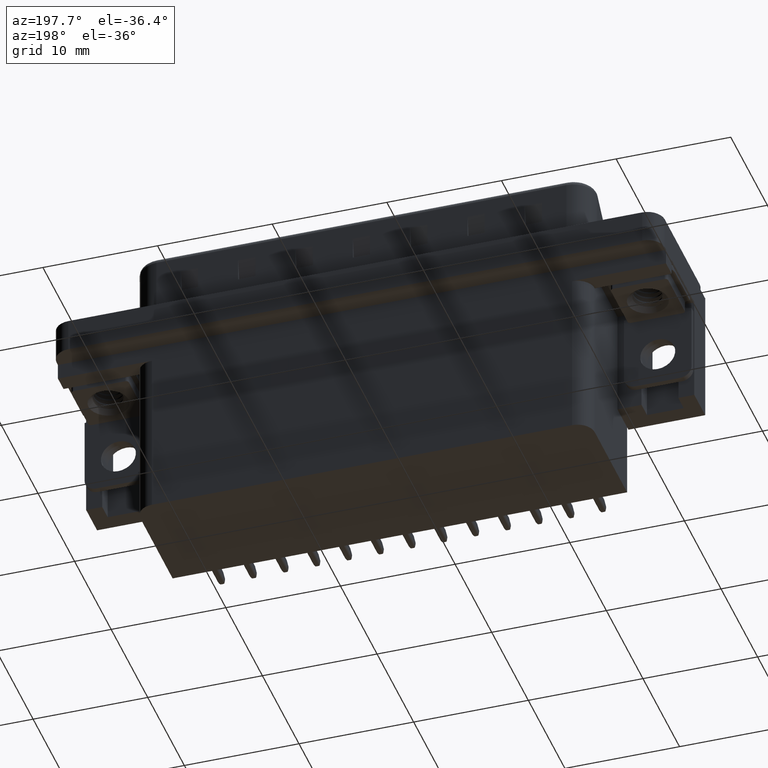
[diagram: clean part render]
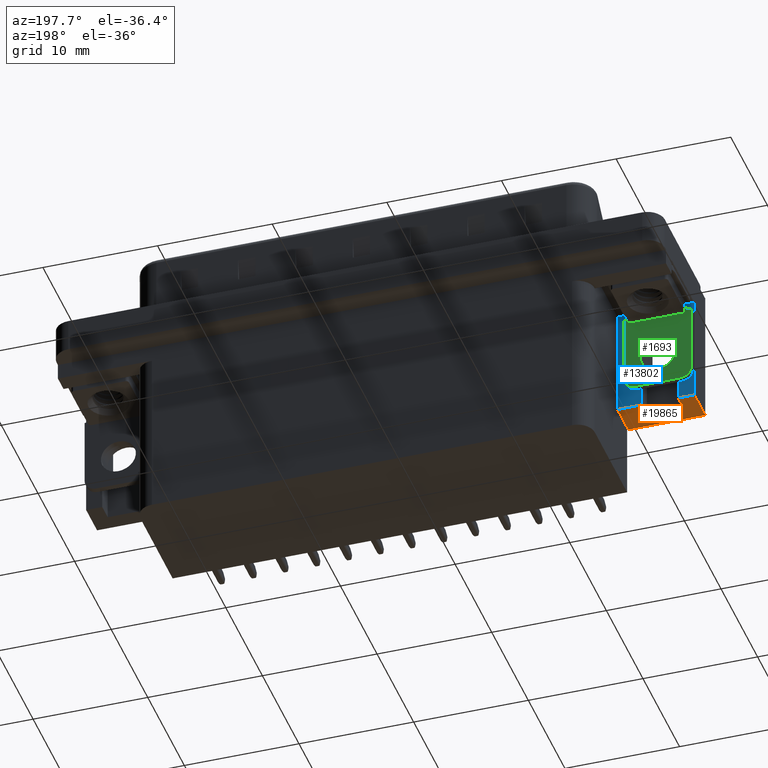
[diagram: same view with three faces highlighted in distinct colors, each labeled with its STEP entity id]
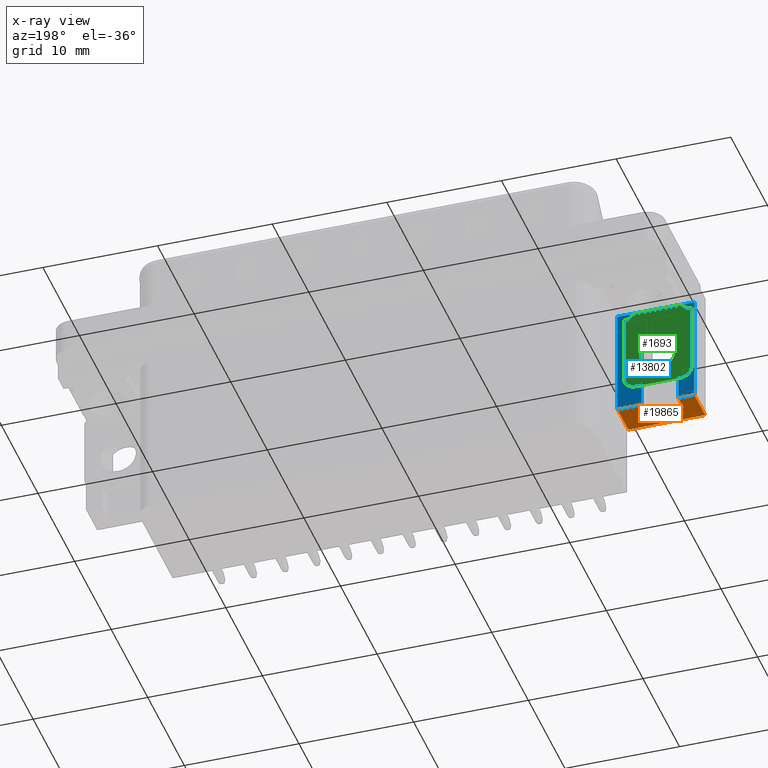
[diagram: x-ray of the same camera — body ghosted, the three highlighted faces saturated]
A machine part, auxiliary view with three faces highlighted in distinct colors.
The next image is the same camera in x-ray (body ghosted, the three faces saturated) — at least one of them is partly hidden behind the body in this view.
Their STEP definitions:

[orange] entity #19865 — the highlighted planar face has unit normal (0, 0, 1).
#186 = VERTEX_POINT ( 'NONE', #2868 ) ;
#203 = DIRECTION ( 'NONE',  ( 6.472848790958235800E-017, 1.000000000000000000, -0.0000000000000000000 ) ) ;
#514 = ORIENTED_EDGE ( 'NONE', *, *, #4296, .F. ) ;
#773 = VECTOR ( 'NONE', #16507, 1000.000000000000000 ) ;
#1485 = EDGE_CURVE ( 'NONE', #17939, #17450, #2166, .T. ) ;
#1992 = DIRECTION ( 'NONE',  ( 6.472848790958235800E-017, 1.000000000000000000, -0.0000000000000000000 ) ) ;
#2073 = CARTESIAN_POINT ( 'NONE',  ( 3.699999999999995700, -6.294999999999999900, -12.05000000000000100 ) ) ;
#2152 = LINE ( 'NONE', #2073, #5705 ) ;
#2166 = LINE ( 'NONE', #2346, #20013 ) ;
#2346 = CARTESIAN_POINT ( 'NONE',  ( -3.000000000000003100, -6.294999999999999900, -12.05000000000000100 ) ) ;
#2655 = EDGE_CURVE ( 'NONE', #5080, #17939, #7852, .T. ) ;
#2868 = CARTESIAN_POINT ( 'NONE',  ( 1.600000000000000300, -3.295000000000000800, -12.05000000000000100 ) ) ;
#2907 = VERTEX_POINT ( 'NONE', #19874 ) ;
#2919 = LINE ( 'NONE', #15902, #6520 ) ;
#3104 = ORIENTED_EDGE ( 'NONE', *, *, #5259, .T. ) ;
#3389 = LINE ( 'NONE', #15766, #12167 ) ;
#3460 = DIRECTION ( 'NONE',  ( 0.0000000000000000000, 1.000000000000000000, -0.0000000000000000000 ) ) ;
#3752 = CARTESIAN_POINT ( 'NONE',  ( 3.699999999999995700, -3.295000000000000800, -12.05000000000000100 ) ) ;
#4027 = CARTESIAN_POINT ( 'NONE',  ( 1.600000000000000300, -4.774999999999999500, -12.05000000000000100 ) ) ;
#4296 = EDGE_CURVE ( 'NONE', #2907, #7349, #2919, .T. ) ;
#4600 = EDGE_CURVE ( 'NONE', #186, #13013, #19218, .T. ) ;
#4791 = EDGE_CURVE ( 'NONE', #14261, #9424, #2152, .T. ) ;
#5080 = VERTEX_POINT ( 'NONE', #20862 ) ;
#5095 = ORIENTED_EDGE ( 'NONE', *, *, #1485, .T. ) ;
#5118 = EDGE_CURVE ( 'NONE', #186, #9424, #17096, .T. ) ;
#5259 = EDGE_CURVE ( 'NONE', #17450, #7349, #18386, .T. ) ;
#5337 = ORIENTED_EDGE ( 'NONE', *, *, #6573, .F. ) ;
#5617 = DIRECTION ( 'NONE',  ( -1.000000000000000000, 0.0000000000000000000, 0.0000000000000000000 ) ) ;
#5705 = VECTOR ( 'NONE', #1992, 1000.000000000000000 ) ;
#6101 = DIRECTION ( 'NONE',  ( 6.472848790958235800E-017, 1.000000000000000000, -0.0000000000000000000 ) ) ;
#6520 = VECTOR ( 'NONE', #3460, 1000.000000000000000 ) ;
#6573 = EDGE_CURVE ( 'NONE', #5080, #14261, #3389, .T. ) ;
#6696 = CARTESIAN_POINT ( 'NONE',  ( 1.600000000000000800, -4.795000000000000800, -12.05000000000000100 ) ) ;
#6793 = DIRECTION ( 'NONE',  ( 1.000000000000000000, -6.472848790958235800E-017, 0.0000000000000000000 ) ) ;
#6820 = CARTESIAN_POINT ( 'NONE',  ( -3.000000000000003100, -3.295000000000000400, -12.05000000000000100 ) ) ;
#7133 = EDGE_CURVE ( 'NONE', #2907, #13013, #22024, .T. ) ;
#7349 = VERTEX_POINT ( 'NONE', #10987 ) ;
#7852 = LINE ( 'NONE', #13654, #16546 ) ;
#7927 = CARTESIAN_POINT ( 'NONE',  ( -3.000000000000003100, -6.275000000000000400, -12.05000000000000100 ) ) ;
#8334 = VECTOR ( 'NONE', #10407, 1000.000000000000000 ) ;
#8853 = ORIENTED_EDGE ( 'NONE', *, *, #5118, .T. ) ;
#8945 = CARTESIAN_POINT ( 'NONE',  ( -3.000000000000003100, -6.294999999999999900, -12.05000000000000100 ) ) ;
#9424 = VERTEX_POINT ( 'NONE', #3752 ) ;
#10407 = DIRECTION ( 'NONE',  ( 1.000000000000000000, 0.0000000000000000000, 0.0000000000000000000 ) ) ;
#10735 = DIRECTION ( 'NONE',  ( 1.000000000000000000, 0.0000000000000000000, -0.0000000000000000000 ) ) ;
#10987 = CARTESIAN_POINT ( 'NONE',  ( -1.600000000000000300, -3.295000000000000400, -12.05000000000000100 ) ) ;
#12167 = VECTOR ( 'NONE', #203, 1000.000000000000000 ) ;
#12208 = CARTESIAN_POINT ( 'NONE',  ( -3.000000000000003100, -3.295000000000000400, -12.05000000000000100 ) ) ;
#12368 = PLANE ( 'NONE',  #16609 ) ;
#12528 = VECTOR ( 'NONE', #6793, 1000.000000000000000 ) ;
#13013 = VERTEX_POINT ( 'NONE', #6696 ) ;
#13654 = CARTESIAN_POINT ( 'NONE',  ( -3.000000000000002700, -6.275000000000000400, -12.05000000000000100 ) ) ;
#14261 = VERTEX_POINT ( 'NONE', #20647 ) ;
#15766 = CARTESIAN_POINT ( 'NONE',  ( 3.699999999999995700, -6.294999999999999900, -12.05000000000000100 ) ) ;
#15902 = CARTESIAN_POINT ( 'NONE',  ( -1.600000000000000300, -4.774999999999999500, -12.05000000000000100 ) ) ;
#16505 = ORIENTED_EDGE ( 'NONE', *, *, #7133, .T. ) ;
#16507 = DIRECTION ( 'NONE',  ( -0.0000000000000000000, -1.000000000000000000, 0.0000000000000000000 ) ) ;
#16546 = VECTOR ( 'NONE', #5617, 1000.000000000000000 ) ;
#16609 = AXIS2_PLACEMENT_3D ( 'NONE', #8945, #20931, #10735 ) ;
#16954 = CARTESIAN_POINT ( 'NONE',  ( -3.000000000000003100, -3.295000000000000400, -12.05000000000000100 ) ) ;
#17096 = LINE ( 'NONE', #6820, #12528 ) ;
#17450 = VERTEX_POINT ( 'NONE', #12208 ) ;
#17939 = VERTEX_POINT ( 'NONE', #7927 ) ;
#18386 = LINE ( 'NONE', #16954, #22354 ) ;
#18831 = EDGE_LOOP ( 'NONE', ( #21189, #5095, #3104, #514, #16505, #20131, #8853, #21040, #5337 ) ) ;
#18902 = CARTESIAN_POINT ( 'NONE',  ( 0.0000000000000000000, -4.795000000000000800, -12.05000000000000100 ) ) ;
#19218 = LINE ( 'NONE', #4027, #773 ) ;
#19762 = FACE_OUTER_BOUND ( 'NONE', #18831, .T. ) ;
#19865 = ADVANCED_FACE ( 'NONE', ( #19762 ), #12368, .F. ) ;
#19874 = CARTESIAN_POINT ( 'NONE',  ( -1.600000000000000100, -4.795000000000000800, -12.04999999999999900 ) ) ;
#20013 = VECTOR ( 'NONE', #6101, 1000.000000000000000 ) ;
#20131 = ORIENTED_EDGE ( 'NONE', *, *, #4600, .F. ) ;
#20647 = CARTESIAN_POINT ( 'NONE',  ( 3.699999999999995700, -5.925000000000001600, -12.05000000000000100 ) ) ;
#20862 = CARTESIAN_POINT ( 'NONE',  ( 3.699999999999995700, -6.275000000000001200, -12.05000000000000100 ) ) ;
#20931 = DIRECTION ( 'NONE',  ( 0.0000000000000000000, 0.0000000000000000000, 1.000000000000000000 ) ) ;
#21040 = ORIENTED_EDGE ( 'NONE', *, *, #4791, .F. ) ;
#21189 = ORIENTED_EDGE ( 'NONE', *, *, #2655, .T. ) ;
#21716 = DIRECTION ( 'NONE',  ( 1.000000000000000000, -6.472848790958235800E-017, 0.0000000000000000000 ) ) ;
#22024 = LINE ( 'NONE', #18902, #8334 ) ;
#22354 = VECTOR ( 'NONE', #21716, 1000.000000000000000 ) ;

[blue] entity #13802 — the highlighted planar face has unit normal (0, -1, 0).
#97 = ORIENTED_EDGE ( 'NONE', *, *, #5222, .F. ) ;
#132 = AXIS2_PLACEMENT_3D ( 'NONE', #15481, #5039, #17192 ) ;
#186 = VERTEX_POINT ( 'NONE', #2868 ) ;
#189 = FACE_OUTER_BOUND ( 'NONE', #5303, .T. ) ;
#397 = EDGE_CURVE ( 'NONE', #22231, #5383, #15860, .T. ) ;
#1034 = VECTOR ( 'NONE', #19115, 1000.000000000000000 ) ;
#1152 = VERTEX_POINT ( 'NONE', #8850 ) ;
#1662 = EDGE_CURVE ( 'NONE', #17450, #22231, #7099, .T. ) ;
#2868 = CARTESIAN_POINT ( 'NONE',  ( 1.600000000000000300, -3.295000000000000800, -12.05000000000000100 ) ) ;
#2945 = VECTOR ( 'NONE', #20665, 1000.000000000000000 ) ;
#3197 = CARTESIAN_POINT ( 'NONE',  ( 3.699999999999995700, -3.295000000000000400, -2.500000000000000000 ) ) ;
#3365 = AXIS2_PLACEMENT_3D ( 'NONE', #19763, #19756, #19736 ) ;
#3609 = VERTEX_POINT ( 'NONE', #3702 ) ;
#3702 = CARTESIAN_POINT ( 'NONE',  ( -1.600000000000000100, -3.295000000000000400, -6.850000000000000500 ) ) ;
#3752 = CARTESIAN_POINT ( 'NONE',  ( 3.699999999999995700, -3.295000000000000800, -12.05000000000000100 ) ) ;
#4155 = CARTESIAN_POINT ( 'NONE',  ( 3.699999999999995700, -3.295000000000000400, -2.500000000000000000 ) ) ;
#4261 = CIRCLE ( 'NONE', #13968, 1.600000000000000800 ) ;
#4830 = EDGE_CURVE ( 'NONE', #9424, #5383, #10411, .T. ) ;
#5039 = DIRECTION ( 'NONE',  ( 0.0000000000000000000, -1.000000000000000000, -0.0000000000000000000 ) ) ;
#5118 = EDGE_CURVE ( 'NONE', #186, #9424, #17096, .T. ) ;
#5156 = EDGE_CURVE ( 'NONE', #1152, #186, #11443, .T. ) ;
#5189 = EDGE_CURVE ( 'NONE', #3609, #16443, #6222, .T. ) ;
#5222 = EDGE_CURVE ( 'NONE', #7349, #3609, #5685, .T. ) ;
#5259 = EDGE_CURVE ( 'NONE', #17450, #7349, #18386, .T. ) ;
#5303 = EDGE_LOOP ( 'NONE', ( #10865, #17672, #15373, #9490, #11608, #97, #6759, #12526, #10907 ) ) ;
#5383 = VERTEX_POINT ( 'NONE', #3197 ) ;
#5589 = DIRECTION ( 'NONE',  ( 0.0000000000000000000, 1.000000000000000000, 0.0000000000000000000 ) ) ;
#5685 = LINE ( 'NONE', #13068, #9834 ) ;
#6222 = CIRCLE ( 'NONE', #3365, 1.600000000000000800 ) ;
#6759 = ORIENTED_EDGE ( 'NONE', *, *, #5259, .F. ) ;
#6793 = DIRECTION ( 'NONE',  ( 1.000000000000000000, -6.472848790958235800E-017, 0.0000000000000000000 ) ) ;
#6820 = CARTESIAN_POINT ( 'NONE',  ( -3.000000000000003100, -3.295000000000000400, -12.05000000000000100 ) ) ;
#7099 = LINE ( 'NONE', #15705, #2945 ) ;
#7215 = DIRECTION ( 'NONE',  ( 0.0000000000000000000, 0.0000000000000000000, -1.000000000000000000 ) ) ;
#7265 = DIRECTION ( 'NONE',  ( -0.0000000000000000000, -0.0000000000000000000, 1.000000000000000000 ) ) ;
#7349 = VERTEX_POINT ( 'NONE', #10987 ) ;
#7604 = DIRECTION ( 'NONE',  ( 1.000000000000000000, -0.0000000000000000000, -0.0000000000000000000 ) ) ;
#7939 = CARTESIAN_POINT ( 'NONE',  ( 1.600000000000000800, -3.295000000000000400, -6.850000000000000500 ) ) ;
#8850 = CARTESIAN_POINT ( 'NONE',  ( 1.600000000000000800, -3.295000000000000400, -6.850000000000000500 ) ) ;
#9424 = VERTEX_POINT ( 'NONE', #3752 ) ;
#9490 = ORIENTED_EDGE ( 'NONE', *, *, #15693, .F. ) ;
#9834 = VECTOR ( 'NONE', #7265, 1000.000000000000000 ) ;
#10294 = PLANE ( 'NONE',  #132 ) ;
#10411 = LINE ( 'NONE', #19109, #1034 ) ;
#10865 = ORIENTED_EDGE ( 'NONE', *, *, #4830, .F. ) ;
#10907 = ORIENTED_EDGE ( 'NONE', *, *, #397, .T. ) ;
#10987 = CARTESIAN_POINT ( 'NONE',  ( -1.600000000000000300, -3.295000000000000400, -12.05000000000000100 ) ) ;
#11443 = LINE ( 'NONE', #7939, #19974 ) ;
#11608 = ORIENTED_EDGE ( 'NONE', *, *, #5189, .F. ) ;
#11810 = VECTOR ( 'NONE', #7604, 1000.000000000000000 ) ;
#12208 = CARTESIAN_POINT ( 'NONE',  ( -3.000000000000003100, -3.295000000000000400, -12.05000000000000100 ) ) ;
#12526 = ORIENTED_EDGE ( 'NONE', *, *, #1662, .T. ) ;
#12528 = VECTOR ( 'NONE', #6793, 1000.000000000000000 ) ;
#13068 = CARTESIAN_POINT ( 'NONE',  ( -1.600000000000000100, -3.295000000000000400, -6.850000000000000500 ) ) ;
#13802 = ADVANCED_FACE ( 'NONE', ( #189 ), #10294, .F. ) ;
#13968 = AXIS2_PLACEMENT_3D ( 'NONE', #16006, #5589, #17715 ) ;
#14055 = CARTESIAN_POINT ( 'NONE',  ( -3.000000000000002700, -3.295000000000000400, -2.500000000000000000 ) ) ;
#15373 = ORIENTED_EDGE ( 'NONE', *, *, #5156, .F. ) ;
#15481 = CARTESIAN_POINT ( 'NONE',  ( 3.699999999999995700, -3.295000000000000400, -18.75999999999999800 ) ) ;
#15693 = EDGE_CURVE ( 'NONE', #16443, #1152, #4261, .T. ) ;
#15705 = CARTESIAN_POINT ( 'NONE',  ( -3.000000000000004000, -3.295000000000000400, -18.75999999999999800 ) ) ;
#15860 = LINE ( 'NONE', #4155, #11810 ) ;
#16006 = CARTESIAN_POINT ( 'NONE',  ( 0.0000000000000000000, -3.295000000000000400, -6.850000000000000500 ) ) ;
#16443 = VERTEX_POINT ( 'NONE', #21005 ) ;
#16954 = CARTESIAN_POINT ( 'NONE',  ( -3.000000000000003100, -3.295000000000000400, -12.05000000000000100 ) ) ;
#17096 = LINE ( 'NONE', #6820, #12528 ) ;
#17192 = DIRECTION ( 'NONE',  ( 0.0000000000000000000, 0.0000000000000000000, -1.000000000000000000 ) ) ;
#17450 = VERTEX_POINT ( 'NONE', #12208 ) ;
#17672 = ORIENTED_EDGE ( 'NONE', *, *, #5118, .F. ) ;
#17715 = DIRECTION ( 'NONE',  ( 0.0000000000000000000, 0.0000000000000000000, 1.000000000000000000 ) ) ;
#18386 = LINE ( 'NONE', #16954, #22354 ) ;
#19109 = CARTESIAN_POINT ( 'NONE',  ( 3.699999999999995700, -3.295000000000000400, -18.75999999999999800 ) ) ;
#19115 = DIRECTION ( 'NONE',  ( -0.0000000000000000000, -0.0000000000000000000, 1.000000000000000000 ) ) ;
#19736 = DIRECTION ( 'NONE',  ( 0.0000000000000000000, 0.0000000000000000000, 1.000000000000000000 ) ) ;
#19756 = DIRECTION ( 'NONE',  ( 0.0000000000000000000, 1.000000000000000000, 0.0000000000000000000 ) ) ;
#19763 = CARTESIAN_POINT ( 'NONE',  ( 0.0000000000000000000, -3.295000000000000400, -6.850000000000000500 ) ) ;
#19974 = VECTOR ( 'NONE', #7215, 1000.000000000000000 ) ;
#20665 = DIRECTION ( 'NONE',  ( -0.0000000000000000000, -0.0000000000000000000, 1.000000000000000000 ) ) ;
#21005 = CARTESIAN_POINT ( 'NONE',  ( 0.0000000000000000000, -3.295000000000000400, -5.249999999999999100 ) ) ;
#21716 = DIRECTION ( 'NONE',  ( 1.000000000000000000, -6.472848790958235800E-017, 0.0000000000000000000 ) ) ;
#22231 = VERTEX_POINT ( 'NONE', #14055 ) ;
#22354 = VECTOR ( 'NONE', #21716, 1000.000000000000000 ) ;

[green] entity #1693 — the highlighted planar face has unit normal (0, -1, 0).
#93 = ORIENTED_EDGE ( 'NONE', *, *, #12070, .F. ) ;
#598 = CARTESIAN_POINT ( 'NONE',  ( -5.000000000000004400, -2.700000000000000200, -10.78008478075999900 ) ) ;
#670 = VERTEX_POINT ( 'NONE', #18642 ) ;
#701 = DIRECTION ( 'NONE',  ( -1.000000000000000000, 0.0000000000000000000, 0.0000000000000000000 ) ) ;
#965 = ORIENTED_EDGE ( 'NONE', *, *, #12561, .F. ) ;
#1039 = VECTOR ( 'NONE', #5621, 1000.000000000000000 ) ;
#1319 = FACE_OUTER_BOUND ( 'NONE', #4750, .T. ) ;
#1651 = DIRECTION ( 'NONE',  ( -0.0000000000000000000, -0.0000000000000000000, -1.000000000000000000 ) ) ;
#1676 = ORIENTED_EDGE ( 'NONE', *, *, #12454, .F. ) ;
#1693 = ADVANCED_FACE ( 'NONE', ( #19212, #1319 ), #2728, .F. ) ;
#1717 = CARTESIAN_POINT ( 'NONE',  ( -2.950000000000001100, -2.700000000000000200, -2.500084780762000100 ) ) ;
#2024 = CARTESIAN_POINT ( 'NONE',  ( -5.000000000000004400, -2.700000000000000200, -3.000084780762000100 ) ) ;
#2131 = DIRECTION ( 'NONE',  ( 0.0000000000000000000, 1.000000000000000000, 0.0000000000000000000 ) ) ;
#2407 = VECTOR ( 'NONE', #4235, 1000.000000000000000 ) ;
#2673 = VECTOR ( 'NONE', #7102, 1000.000000000000000 ) ;
#2679 = CARTESIAN_POINT ( 'NONE',  ( -1.950000000000000400, -2.700000000000000200, -10.48008478076200100 ) ) ;
#2728 = PLANE ( 'NONE',  #7960 ) ;
#3084 = DIRECTION ( 'NONE',  ( 1.000000000000000000, 0.0000000000000000000, 0.0000000000000000000 ) ) ;
#3224 = LINE ( 'NONE', #5245, #2673 ) ;
#3276 = CARTESIAN_POINT ( 'NONE',  ( 0.0000000000000000000, -2.700000000000000200, -6.074999999999998400 ) ) ;
#3372 = ORIENTED_EDGE ( 'NONE', *, *, #12657, .F. ) ;
#3465 = DIRECTION ( 'NONE',  ( -1.000000000000000000, 0.0000000000000000000, 0.0000000000000000000 ) ) ;
#3768 = DIRECTION ( 'NONE',  ( 1.000000000000000000, 0.0000000000000000000, 0.0000000000000000000 ) ) ;
#3936 = AXIS2_PLACEMENT_3D ( 'NONE', #6483, #18551, #8260 ) ;
#4192 = VERTEX_POINT ( 'NONE', #18820 ) ;
#4235 = DIRECTION ( 'NONE',  ( 0.0000000000000000000, 0.0000000000000000000, 1.000000000000000000 ) ) ;
#4728 = VERTEX_POINT ( 'NONE', #5867 ) ;
#4750 = EDGE_LOOP ( 'NONE', ( #10593, #1676, #10085, #17170, #965, #22289, #3372, #7068, #5174, #18797 ) ) ;
#5174 = ORIENTED_EDGE ( 'NONE', *, *, #12792, .F. ) ;
#5245 = CARTESIAN_POINT ( 'NONE',  ( -2.149999999999999000, -2.700000000000000200, -10.78008478075999900 ) ) ;
#5452 = CIRCLE ( 'NONE', #14500, 1.000000000000000000 ) ;
#5621 = DIRECTION ( 'NONE',  ( 0.0000000000000000000, 0.0000000000000000000, 1.000000000000000000 ) ) ;
#5712 = VECTOR ( 'NONE', #3768, 1000.000000000000000 ) ;
#5867 = CARTESIAN_POINT ( 'NONE',  ( 2.150000000000158900, -2.700000000000000200, -3.100084780761879900 ) ) ;
#6467 = VERTEX_POINT ( 'NONE', #10516 ) ;
#6483 = CARTESIAN_POINT ( 'NONE',  ( 0.0000000000000000000, -2.700000000000000200, -7.599999999999998800 ) ) ;
#6532 = CIRCLE ( 'NONE', #13630, 1.000000000000000000 ) ;
#6824 = LINE ( 'NONE', #2024, #5712 ) ;
#7068 = ORIENTED_EDGE ( 'NONE', *, *, #12754, .T. ) ;
#7102 = DIRECTION ( 'NONE',  ( -0.0000000000000000000, -0.0000000000000000000, -1.000000000000000000 ) ) ;
#7770 = CARTESIAN_POINT ( 'NONE',  ( 2.149999999999999000, -2.699999999999999700, -3.000084780762000100 ) ) ;
#7960 = AXIS2_PLACEMENT_3D ( 'NONE', #598, #9974, #3084 ) ;
#7993 = CARTESIAN_POINT ( 'NONE',  ( 1.950000000000000400, -2.700000000000000200, -9.480084780762002300 ) ) ;
#8260 = DIRECTION ( 'NONE',  ( 0.0000000000000000000, 0.0000000000000000000, 1.000000000000000000 ) ) ;
#8544 = DIRECTION ( 'NONE',  ( 0.0000000000000000000, -1.000000000000000000, 0.0000000000000000000 ) ) ;
#8678 = CARTESIAN_POINT ( 'NONE',  ( 1.867586368699712800E-016, -2.700000000000000200, -9.125000000000000000 ) ) ;
#9795 = DIRECTION ( 'NONE',  ( -1.000000000000000000, 0.0000000000000000000, 0.0000000000000000000 ) ) ;
#9863 = LINE ( 'NONE', #17744, #1039 ) ;
#9974 = DIRECTION ( 'NONE',  ( 0.0000000000000000000, -1.000000000000000000, 0.0000000000000000000 ) ) ;
#10085 = ORIENTED_EDGE ( 'NONE', *, *, #12493, .F. ) ;
#10140 = DIRECTION ( 'NONE',  ( 1.000000000000000000, 0.0000000000000000000, 0.0000000000000000000 ) ) ;
#10516 = CARTESIAN_POINT ( 'NONE',  ( 2.950000000001000300, -2.700000000000000200, -3.500084780762000600 ) ) ;
#10593 = ORIENTED_EDGE ( 'NONE', *, *, #12383, .F. ) ;
#11224 = DIRECTION ( 'NONE',  ( -0.0000000000000000000, -1.000000000000000000, -0.0000000000000000000 ) ) ;
#11601 = EDGE_LOOP ( 'NONE', ( #18522, #93 ) ) ;
#11759 = CIRCLE ( 'NONE', #3936, 1.525000000000000400 ) ;
#12008 = CARTESIAN_POINT ( 'NONE',  ( 2.950000000000494000, -2.700000000000000200, -9.480084780762002300 ) ) ;
#12070 = EDGE_CURVE ( 'NONE', #13111, #15465, #14748, .T. ) ;
#12119 = CARTESIAN_POINT ( 'NONE',  ( -2.950000000000001100, -2.700000000000000200, -10.78008478075999900 ) ) ;
#12353 = EDGE_CURVE ( 'NONE', #15465, #13111, #11759, .T. ) ;
#12383 = EDGE_CURVE ( 'NONE', #12842, #13078, #19749, .T. ) ;
#12454 = EDGE_CURVE ( 'NONE', #670, #12842, #5452, .T. ) ;
#12493 = EDGE_CURVE ( 'NONE', #4192, #670, #13116, .T. ) ;
#12519 = EDGE_CURVE ( 'NONE', #4192, #20118, #21615, .T. ) ;
#12561 = EDGE_CURVE ( 'NONE', #15501, #20118, #3224, .T. ) ;
#12614 = CARTESIAN_POINT ( 'NONE',  ( 0.0000000000000000000, -2.700000000000000200, -7.599999999999998800 ) ) ;
#12624 = EDGE_CURVE ( 'NONE', #15501, #17901, #6824, .T. ) ;
#12657 = EDGE_CURVE ( 'NONE', #4728, #17901, #9863, .T. ) ;
#12754 = EDGE_CURVE ( 'NONE', #4728, #6467, #16866, .T. ) ;
#12792 = EDGE_CURVE ( 'NONE', #14224, #6467, #16310, .T. ) ;
#12831 = EDGE_CURVE ( 'NONE', #13078, #14224, #6532, .T. ) ;
#12842 = VERTEX_POINT ( 'NONE', #2679 ) ;
#13062 = CARTESIAN_POINT ( 'NONE',  ( -2.149999999999999000, -2.700000000000000200, -3.100084780761999800 ) ) ;
#13078 = VERTEX_POINT ( 'NONE', #22304 ) ;
#13111 = VERTEX_POINT ( 'NONE', #8678 ) ;
#13116 = LINE ( 'NONE', #12119, #17658 ) ;
#13516 = CARTESIAN_POINT ( 'NONE',  ( -2.950000000000001100, -2.700000000000000200, -10.48008478076200100 ) ) ;
#13630 = AXIS2_PLACEMENT_3D ( 'NONE', #7993, #20010, #9795 ) ;
#13964 = DIRECTION ( 'NONE',  ( -0.0000000000000000000, -1.000000000000000000, -0.0000000000000000000 ) ) ;
#14224 = VERTEX_POINT ( 'NONE', #12008 ) ;
#14359 = DIRECTION ( 'NONE',  ( 0.0000000000000000000, 0.0000000000000000000, 1.000000000000000000 ) ) ;
#14500 = AXIS2_PLACEMENT_3D ( 'NONE', #18842, #8544, #20538 ) ;
#14748 = CIRCLE ( 'NONE', #21011, 1.525000000000000400 ) ;
#15465 = VERTEX_POINT ( 'NONE', #3276 ) ;
#15501 = VERTEX_POINT ( 'NONE', #15568 ) ;
#15568 = CARTESIAN_POINT ( 'NONE',  ( -2.149999999999999000, -2.699999999999999700, -3.000084780762000100 ) ) ;
#16310 = LINE ( 'NONE', #16412, #2407 ) ;
#16412 = CARTESIAN_POINT ( 'NONE',  ( 2.950000000001000300, -2.700000000000000200, -10.78008478075999900 ) ) ;
#16866 = CIRCLE ( 'NONE', #20875, 1.000000000000000000 ) ;
#17170 = ORIENTED_EDGE ( 'NONE', *, *, #12519, .T. ) ;
#17658 = VECTOR ( 'NONE', #1651, 1000.000000000000000 ) ;
#17744 = CARTESIAN_POINT ( 'NONE',  ( 2.149999999999999000, -2.700000000000000200, -10.78008478075999900 ) ) ;
#17901 = VERTEX_POINT ( 'NONE', #7770 ) ;
#18522 = ORIENTED_EDGE ( 'NONE', *, *, #12353, .F. ) ;
#18551 = DIRECTION ( 'NONE',  ( 0.0000000000000000000, 1.000000000000000000, 0.0000000000000000000 ) ) ;
#18642 = CARTESIAN_POINT ( 'NONE',  ( -2.950000000000001100, -2.700000000000000200, -9.480084780762002300 ) ) ;
#18797 = ORIENTED_EDGE ( 'NONE', *, *, #12831, .F. ) ;
#18820 = CARTESIAN_POINT ( 'NONE',  ( -2.950000000000001100, -2.700000000000000200, -3.500084780762000600 ) ) ;
#18842 = CARTESIAN_POINT ( 'NONE',  ( -1.950000000000000400, -2.700000000000000200, -9.480084780762002300 ) ) ;
#19212 = FACE_BOUND ( 'NONE', #11601, .T. ) ;
#19225 = VECTOR ( 'NONE', #10140, 1000.000000000000000 ) ;
#19749 = LINE ( 'NONE', #13516, #19225 ) ;
#20010 = DIRECTION ( 'NONE',  ( -0.0000000000000000000, -1.000000000000000000, -0.0000000000000000000 ) ) ;
#20118 = VERTEX_POINT ( 'NONE', #13062 ) ;
#20538 = DIRECTION ( 'NONE',  ( 1.000000000000000000, 0.0000000000000000000, 0.0000000000000000000 ) ) ;
#20875 = AXIS2_PLACEMENT_3D ( 'NONE', #21433, #11224, #701 ) ;
#21011 = AXIS2_PLACEMENT_3D ( 'NONE', #12614, #2131, #14359 ) ;
#21178 = AXIS2_PLACEMENT_3D ( 'NONE', #1717, #13964, #3465 ) ;
#21433 = CARTESIAN_POINT ( 'NONE',  ( 2.950000000001000300, -2.700000000000000200, -2.500084780762000100 ) ) ;
#21615 = CIRCLE ( 'NONE', #21178, 1.000000000000000000 ) ;
#22289 = ORIENTED_EDGE ( 'NONE', *, *, #12624, .T. ) ;
#22304 = CARTESIAN_POINT ( 'NONE',  ( 1.950000000000000400, -2.700000000000000200, -10.48008478076200100 ) ) ;